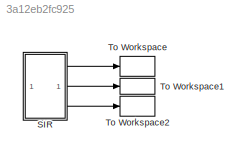
MODEL slx_3a12eb2fc925
KIND model
CONFIG AbsTol = auto
CONFIG EnableMultiTasking = off
CONFIG FixedStep = auto
CONFIG MaxStep = auto
CONFIG MinStep = auto
CONFIG RelTol = 1e-3
CONFIG SampleTimeConstraint = Unconstrained
CONFIG SolverName = VariableStepAuto
CONFIG StartTime = 0.0
CONFIG StopTime = 10.0
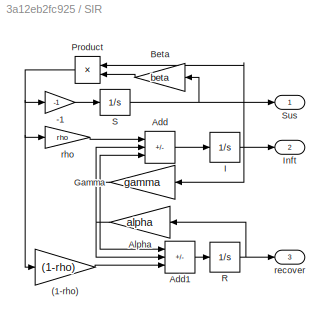
BLOCK [SubSystem] SIR
BLOCK [Gain] SIR/(1-rho)
  Gain = (1-rho)
BLOCK [Gain] SIR/-1
  Gain = -1
BLOCK [Sum] SIR/Add
  IconShape = rectangular
  Inputs = ++-
BLOCK [Sum] SIR/Add1
  IconShape = rectangular
  Inputs = +-+
BLOCK [Gain] SIR/Alpha
  Gain = alpha
BLOCK [Gain] SIR/Beta
  Gain = beta
BLOCK [Gain] SIR/Gamma
  Gain = gamma
BLOCK [Integrator] SIR/I
  InitialCondition = I0
BLOCK [Outport] SIR/Inft
  Port = 2
BLOCK [Product] SIR/Product
BLOCK [Integrator] SIR/R
  InitialCondition = R0
BLOCK [Integrator] SIR/S
  InitialCondition = S0
BLOCK [Outport] SIR/Sus
BLOCK [Outport] SIR/recover
  Port = 3
BLOCK [Gain] SIR/rho
  Gain = rho
BLOCK [ToWorkspace] To Workspace
  FixptAsFi = on
  MaxDataPoints = inf
  SampleTime = -1
  SaveFormat = Timeseries
  VariableName = simS
BLOCK [ToWorkspace] To Workspace1
  FixptAsFi = on
  MaxDataPoints = inf
  SampleTime = -1
  SaveFormat = Timeseries
  VariableName = simI
BLOCK [ToWorkspace] To Workspace2
  FixptAsFi = on
  MaxDataPoints = inf
  SampleTime = -1
  SaveFormat = Timeseries
  VariableName = simR
LINE SIR/(1-rho):1 -> SIR/Add1:3
LINE SIR/-1:1 -> SIR/S:1
LINE SIR/Add1:1 -> SIR/R:1
LINE SIR/Add:1 -> SIR/I:1
NET SIR/Alpha:1 -> SIR/Add1:2, SIR/Add:2
LINE SIR/Beta:1 -> SIR/Product:2
NET SIR/Gamma:1 -> SIR/Add1:1, SIR/Add:3
NET SIR/I:1 -> SIR/Gamma:1, SIR/Inft:1, SIR/Product:1
NET SIR/Product:1 -> SIR/(1-rho):1, SIR/-1:1, SIR/rho:1
NET SIR/R:1 -> SIR/Alpha:1, SIR/recover:1
NET SIR/S:1 -> SIR/Beta:1, SIR/Sus:1
LINE SIR/rho:1 -> SIR/Add:1
LINE SIR:1 -> To Workspace:1
LINE SIR:2 -> To Workspace1:1
LINE SIR:3 -> To Workspace2:1
note: NET lines group one-source signal fan-out (src -> all destinations, sorted); 1:1 wires keep LINE
